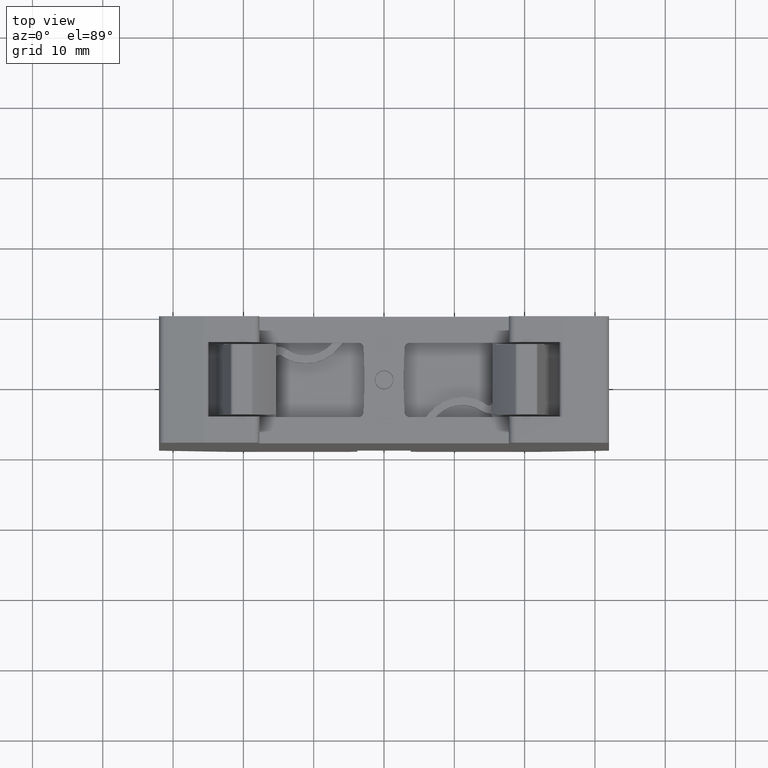
[diagram: clean part render]
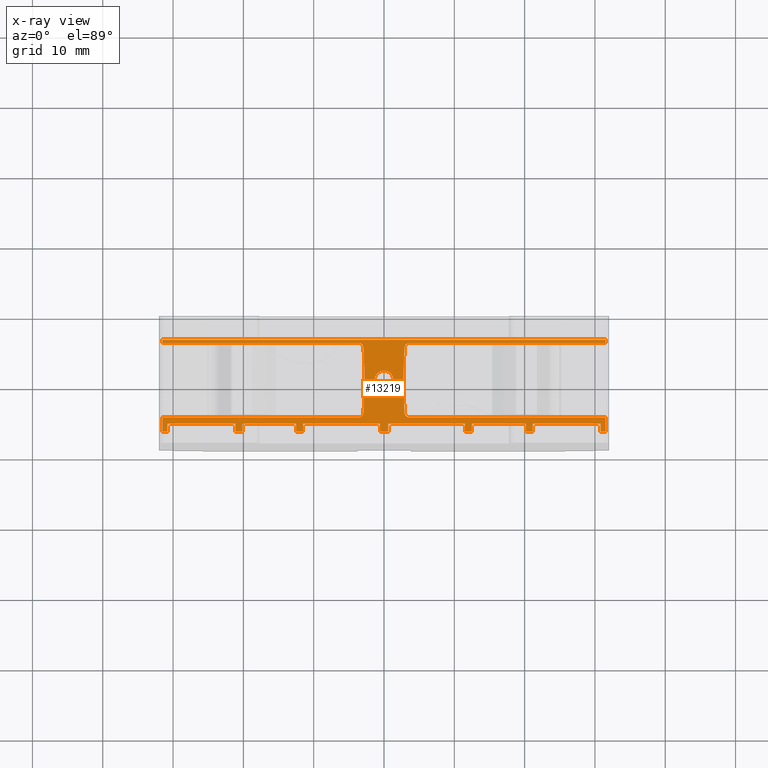
[diagram: x-ray — body ghosted, one internal face saturated and labeled with its STEP entity id]
A machine part, top view, then the same camera in x-ray: the body is ghosted and one INTERNAL B-rep face — a face not visible from any outside direction — is saturated and labeled: STEP entity #13219.
In plain terms, the highlighted planar face has unit normal (-0, 0, 1).
Its self-contained STEP definition (entity closure, byte-faithful):
#1357 = VECTOR ( 'NONE', #17690, 1000.000000000000000 ) ;
#1416 = VECTOR ( 'NONE', #17893, 1000.000000000000000 ) ;
#1419 = VECTOR ( 'NONE', #18121, 1000.000000000000000 ) ;
#1425 = VECTOR ( 'NONE', #18141, 1000.000000000000000 ) ;
#1433 = VECTOR ( 'NONE', #17871, 1000.000000000000000 ) ;
#1435 = VECTOR ( 'NONE', #17680, 1000.000000000000000 ) ;
#1471 = VECTOR ( 'NONE', #17788, 1000.000000000000000 ) ;
#1477 = VECTOR ( 'NONE', #16732, 1000.000000000000000 ) ;
#1494 = VECTOR ( 'NONE', #18208, 1000.000000000000000 ) ;
#1500 = VECTOR ( 'NONE', #18220, 1000.000000000000000 ) ;
#1502 = VECTOR ( 'NONE', #18165, 1000.000000000000000 ) ;
#1568 = VECTOR ( 'NONE', #18380, 1000.000000000000000 ) ;
#1573 = VECTOR ( 'NONE', #19024, 999.9999999999998900 ) ;
#1574 = VECTOR ( 'NONE', #18853, 1000.000000000000100 ) ;
#1576 = VECTOR ( 'NONE', #18931, 1000.000000000000000 ) ;
#1580 = VECTOR ( 'NONE', #17835, 1000.000000000000100 ) ;
#1583 = VECTOR ( 'NONE', #18794, 1000.000000000000000 ) ;
#1586 = VECTOR ( 'NONE', #18885, 1000.000000000000000 ) ;
#1590 = VECTOR ( 'NONE', #17857, 1000.000000000000000 ) ;
#1595 = VECTOR ( 'NONE', #18836, 1000.000000000000000 ) ;
#1596 = VECTOR ( 'NONE', #18819, 1000.000000000000000 ) ;
#1601 = VECTOR ( 'NONE', #18965, 1000.000000000000000 ) ;
#1607 = VECTOR ( 'NONE', #18994, 999.9999999999998900 ) ;
#1631 = VECTOR ( 'NONE', #19010, 1000.000000000000000 ) ;
#1709 = VECTOR ( 'NONE', #19875, 1000.000000000000000 ) ;
#1719 = VECTOR ( 'NONE', #3483, 1000.000000000000000 ) ;
#2250 = EDGE_CURVE ( 'NONE', #21984, #21950, #2954, .T. ) ;
#2255 = EDGE_CURVE ( 'NONE', #21880, #21900, #17646, .T. ) ;
#2260 = EDGE_CURVE ( 'NONE', #22620, #21815, #17675, .T. ) ;
#2277 = EDGE_CURVE ( 'NONE', #21968, #21799, #17781, .T. ) ;
#2294 = EDGE_CURVE ( 'NONE', #21802, #21766, #16704, .T. ) ;
#2302 = EDGE_CURVE ( 'NONE', #21861, #21678, #17907, .T. ) ;
#2305 = EDGE_CURVE ( 'NONE', #21869, #21953, #17905, .T. ) ;
#2353 = EDGE_CURVE ( 'NONE', #21950, #22066, #18116, .T. ) ;
#2358 = EDGE_CURVE ( 'NONE', #22017, #22108, #18170, .T. ) ;
#2366 = EDGE_CURVE ( 'NONE', #22015, #21968, #18149, .T. ) ;
#2379 = EDGE_CURVE ( 'NONE', #21802, #21637, #18202, .T. ) ;
#2381 = EDGE_CURVE ( 'NONE', #21869, #22984, #18210, .T. ) ;
#2415 = EDGE_CURVE ( 'NONE', #21687, #21815, #18346, .T. ) ;
#2504 = EDGE_CURVE ( 'NONE', #22185, #22196, #18793, .T. ) ;
#2507 = EDGE_CURVE ( 'NONE', #22213, #22171, #3069, .T. ) ;
#2508 = EDGE_CURVE ( 'NONE', #22134, #22185, #3070, .T. ) ;
#2509 = EDGE_CURVE ( 'NONE', #22134, #22098, #18838, .T. ) ;
#2510 = EDGE_CURVE ( 'NONE', #22195, #22066, #18868, .T. ) ;
#2519 = EDGE_CURVE ( 'NONE', #22017, #22148, #18916, .T. ) ;
#2521 = EDGE_CURVE ( 'NONE', #22146, #22175, #3046, .T. ) ;
#2522 = EDGE_CURVE ( 'NONE', #22202, #22087, #18923, .T. ) ;
#2525 = EDGE_CURVE ( 'NONE', #22015, #22108, #18956, .T. ) ;
#2526 = EDGE_CURVE ( 'NONE', #22148, #22168, #3047, .T. ) ;
#2536 = EDGE_CURVE ( 'NONE', #22098, #22171, #17844, .T. ) ;
#2538 = EDGE_CURVE ( 'NONE', #22192, #21984, #17841, .T. ) ;
#2545 = EDGE_CURVE ( 'NONE', #22192, #22213, #18796, .T. ) ;
#2550 = EDGE_CURVE ( 'NONE', #22215, #22150, #19022, .T. ) ;
#2558 = EDGE_CURVE ( 'NONE', #22150, #22168, #19007, .T. ) ;
#2559 = EDGE_CURVE ( 'NONE', #22202, #22196, #19025, .T. ) ;
#2560 = EDGE_CURVE ( 'NONE', #22215, #22195, #3073, .T. ) ;
#2561 = EDGE_CURVE ( 'NONE', #22175, #22146, #3083, .T. ) ;
#2717 = EDGE_CURVE ( 'NONE', #21953, #22087, #19877, .T. ) ;
#2809 = EDGE_CURVE ( 'NONE', #21571, #21799, #3471, .T. ) ;
#2954 = B_SPLINE_CURVE_WITH_KNOTS ( 'NONE', 3,
 ( #17656, #17655, #17661, #17651 ),
 .UNSPECIFIED., .F., .F.,
 ( 4, 4 ),
 ( 0.0000000000000000000, 1.000000000000000000 ),
 .UNSPECIFIED. ) ;
#3046 = B_SPLINE_CURVE_WITH_KNOTS ( 'NONE', 3,
 ( #18870, #18871, #18899, #18903, #18911, #18904, #18905, #18921, #18920, #18876, #18894, #18872, #18891, #18877, #18908, #18873, #18896, #18909, #18878, #18880, #18882, #18893, #18886, #18883, #18888, #18889, #18964, #18976, #18933, #18934, #18954, #18970, #18959, #18955 ),
 .UNSPECIFIED., .F., .F.,
 ( 4, 1, 1, 2, 2, 2, 1, 1, 2, 2, 2, 1, 1, 2, 2, 2, 1, 1, 2, 2, 4 ),
 ( 0.0000000000000000000, 0.06250000000001206000, 0.09375000000001809700, 0.1093750000000211100, 0.1250000000000241200, 0.2500000000000541800, 0.3125000000000708300, 0.3437500000000792100, 0.3593750000000844300, 0.3750000000000897100, 0.5000000000000884800, 0.5625000000000930400, 0.5937500000001008100, 0.6093750000001053600, 0.6250000000001099100, 0.7500000000000967000, 0.8125000000000901500, 0.8437500000000848200, 0.8593750000000801600, 0.8750000000000753800, 1.000000000000000000 ),
 .UNSPECIFIED. ) ;
#3047 = B_SPLINE_CURVE_WITH_KNOTS ( 'NONE', 3,
 ( #18951, #18937, #18952, #18936, #18947, #18957, #18967, #18966, #18938, #18953, #18968, #18928, #18939, #18944, #18960, #18969 ),
 .UNSPECIFIED., .F., .F.,
 ( 4, 1, 2, 2, 2, 1, 2, 2, 4 ),
 ( 0.0000000000000000000, 0.1250000000000129600, 0.1875000000000025800, 0.2499999999999922300, 0.4999999999999765700, 0.6249999999999746900, 0.6874999999999764600, 0.7499999999999782400, 1.000000000000000000 ),
 .UNSPECIFIED. ) ;
#3069 = B_SPLINE_CURVE_WITH_KNOTS ( 'NONE', 3,
 ( #18830, #18862, #18851, #18824, #18832, #18828, #18860, #18825, #18820, #18844, #18829, #18842, #18826, #18839, #18849, #18863 ),
 .UNSPECIFIED., .F., .F.,
 ( 4, 1, 2, 2, 2, 1, 2, 2, 4 ),
 ( 0.0000000000000000000, 0.1249999999999689400, 0.1874999999999702500, 0.2499999999999715800, 0.5000000000000212100, 0.6250000000000399700, 0.6875000000000394100, 0.7500000000000388600, 1.000000000000000000 ),
 .UNSPECIFIED. ) ;
#3070 = B_SPLINE_CURVE_WITH_KNOTS ( 'NONE', 3,
 ( #18831, #18841, #18821, #18845, #18856, #18833, #18866, #18840, #18846, #18867, #18848, #18857, #18852, #18847, #18835, #18837 ),
 .UNSPECIFIED., .F., .F.,
 ( 4, 1, 2, 2, 2, 1, 2, 2, 4 ),
 ( 0.0000000000000000000, 0.1250000000000042500, 0.1875000000000114900, 0.2500000000000187100, 0.5000000000000498500, 0.6250000000000594000, 0.6875000000000541800, 0.7500000000000490700, 1.000000000000000000 ),
 .UNSPECIFIED. ) ;
#3073 = B_SPLINE_CURVE_WITH_KNOTS ( 'NONE', 3,
 ( #19009, #18978, #18979, #18980, #18992, #19011, #19064, #19043, #19037, #19053, #19069, #19063, #19047, #19042, #19035, #19054 ),
 .UNSPECIFIED., .F., .F.,
 ( 4, 1, 2, 2, 2, 1, 2, 2, 4 ),
 ( 0.0000000000000000000, 0.1249999999999928400, 0.1875000000000025800, 0.2500000000000123200, 0.5000000000000198700, 0.6250000000000236500, 0.6875000000000208700, 0.7500000000000181000, 1.000000000000000000 ),
 .UNSPECIFIED. ) ;
#3083 = B_SPLINE_CURVE_WITH_KNOTS ( 'NONE', 3,
 ( #19019, #18977, #19065, #19048, #19044, #19036, #19055, #19038, #19074, #19056, #19027, #19075, #19071, #19032, #19033, #19057, #19045, #19076, #19070, #19072, #19031, #19041, #19049, #19073, #19077, #19083, #19029, #19078, #19039, #19050, #19058, #19046, #19084, #19034 ),
 .UNSPECIFIED., .F., .F.,
 ( 4, 1, 1, 2, 2, 2, 1, 1, 2, 2, 2, 1, 1, 2, 2, 2, 1, 1, 2, 2, 4 ),
 ( 0.0000000000000000000, 0.06250000000001622300, 0.09375000000002529900, 0.1093750000000298400, 0.1250000000000343600, 0.2500000000000663400, 0.3125000000000806600, 0.3437500000000904800, 0.3593750000000964800, 0.3750000000001025300, 0.5000000000000962600, 0.5625000000000931500, 0.5937500000000870400, 0.6093750000000897100, 0.6250000000000922600, 0.7500000000000818200, 0.8125000000000767200, 0.8437500000000695000, 0.8593750000000637300, 0.8750000000000580600, 1.000000000000000000 ),
 .UNSPECIFIED. ) ;
#3471 = LINE ( 'NONE', #3476, #1719 ) ;
#3476 = CARTESIAN_POINT ( 'NONE',  ( 78.84951453915148500, 27.34912838396847300, 67.45686976279056100 ) ) ;
#3483 = DIRECTION ( 'NONE',  ( -7.093989038407037500E-015, 1.000000000000000000, -6.046544723601002400E-027 ) ) ;
#4425 = FACE_BOUND ( 'NONE', #21347, .T. ) ;
#4505 = FACE_OUTER_BOUND ( 'NONE', #21423, .T. ) ;
#4644 = PLANE ( 'NONE',  #15846 ) ;
#4682 = CARTESIAN_POINT ( 'NONE',  ( -246.0004763166920200, 57.37460764094880300, 67.45686993021310200 ) ) ;
#4704 = DIRECTION ( 'NONE',  ( -9.253514454560193400E-013, 3.491481356601049100E-015, 1.000000000000000000 ) ) ;
#4707 = DIRECTION ( 'NONE',  ( 1.000000000000000000, 0.0000000000000000000, 9.253514454560193400E-013 ) ) ;
#5412 = CARTESIAN_POINT ( 'NONE',  ( 97.08968792074087200, 45.49843301844644100, 67.45686980424761700 ) ) ;
#5696 = CARTESIAN_POINT ( 'NONE',  ( 102.9093185216858800, 54.65078226347747400, 67.45686993004518700 ) ) ;
#6050 = CARTESIAN_POINT ( 'NONE',  ( 120.1495145391509300, 42.77460764097550300, 67.45686968071014200 ) ) ;
#6218 = CARTESIAN_POINT ( 'NONE',  ( 112.4995145415566500, 42.77460764097544700, 67.45686982571788800 ) ) ;
#6235 = CARTESIAN_POINT ( 'NONE',  ( 88.49951454396679700, 42.77460764097526200, 67.45686988859188200 ) ) ;
#6241 = CARTESIAN_POINT ( 'NONE',  ( 78.84951453915135700, 42.77460764097521200, 67.45686976279085900 ) ) ;
#6283 = CARTESIAN_POINT ( 'NONE',  ( 100.5995145423596700, 42.77460764097535400, 67.45686988860308000 ) ) ;
#6312 = CARTESIAN_POINT ( 'NONE',  ( 99.39951454565061800, 42.77460764097535400, 67.45686984667145200 ) ) ;
#6332 = CARTESIAN_POINT ( 'NONE',  ( 111.4995145391510800, 42.77460764097543900, 67.45686976282107100 ) ) ;
#6336 = CARTESIAN_POINT ( 'NONE',  ( 120.1495145455061900, 43.87460764096159200, 67.45686984669036700 ) ) ;
#6363 = CARTESIAN_POINT ( 'NONE',  ( 87.49951454565061200, 42.77460764097526200, 67.45686984666038200 ) ) ;
#6403 = CARTESIAN_POINT ( 'NONE',  ( 78.84951454094215300, 43.87460764096126600, 67.45686981869829400 ) ) ;
#6412 = CARTESIAN_POINT ( 'NONE',  ( 99.39951454240250000, 43.87460764096145000, 67.45686984667118200 ) ) ;
#6458 = CARTESIAN_POINT ( 'NONE',  ( 87.49951454565062600, 43.87460764096135100, 67.45686984666014000 ) ) ;
#6466 = CARTESIAN_POINT ( 'NONE',  ( 88.49951454075643700, 43.87460764096139300, 67.45686993052518700 ) ) ;
#6492 = CARTESIAN_POINT ( 'NONE',  ( 112.4995145407540500, 43.87460764096155700, 67.45686993054665900 ) ) ;
#6521 = CARTESIAN_POINT ( 'NONE',  ( 100.5995145407540600, 43.87460764096147200, 67.45686993053639900 ) ) ;
#6528 = CARTESIAN_POINT ( 'NONE',  ( 121.1495145391511100, 43.87460764096162800, 67.45686972710656400 ) ) ;
#6563 = CARTESIAN_POINT ( 'NONE',  ( 111.4995145391519900, 43.87460764096154300, 67.45686980475157700 ) ) ;
#6614 = CARTESIAN_POINT ( 'NONE',  ( 69.19951454273152100, 43.87460764096123700, 67.45686993050480900 ) ) ;
#6628 = CARTESIAN_POINT ( 'NONE',  ( 68.49952465779669800, 55.82460764096136800, 67.45686993050630100 ) ) ;
#6629 = CARTESIAN_POINT ( 'NONE',  ( 130.7995145391522800, 43.87460764096164900, 67.45686993056180800 ) ) ;
#6634 = CARTESIAN_POINT ( 'NONE',  ( 131.4995174183737600, 55.82460764096168800, 67.45686993056092700 ) ) ;
#6646 = CARTESIAN_POINT ( 'NONE',  ( 69.19951454094335500, 42.77460764097514800, 67.45686981868935600 ) ) ;
#6682 = CARTESIAN_POINT ( 'NONE',  ( 68.49951453914739800, 44.77460764097488500, 67.45686980471178600 ) ) ;
#6710 = CARTESIAN_POINT ( 'NONE',  ( 68.49951453914751200, 42.77460764097514100, 67.45686980471177200 ) ) ;
#6741 = CARTESIAN_POINT ( 'NONE',  ( 130.7995145391522800, 42.77460764097558900, 67.45686981874678200 ) ) ;
#6750 = CARTESIAN_POINT ( 'NONE',  ( 102.7495032212108900, 50.07460764089338300, 67.45686984667436500 ) ) ;
#6759 = CARTESIAN_POINT ( 'NONE',  ( 68.49952621712147000, 55.37460764094613800, 67.45686993050416900 ) ) ;
#6768 = CARTESIAN_POINT ( 'NONE',  ( 96.34014480047655100, 44.77460764097410400, 67.45686980473112700 ) ) ;
#6769 = CARTESIAN_POINT ( 'NONE',  ( 97.24950322121321700, 50.07460764110015100, 67.45686984666913600 ) ) ;
#6783 = CARTESIAN_POINT ( 'NONE',  ( 102.9092949990357200, 45.49843301841212200, 67.45686980474369000 ) ) ;
#6791 = CARTESIAN_POINT ( 'NONE',  ( 101.3495032205522400, 50.07460764096234100, 67.45686981753581800 ) ) ;
#6807 = CARTESIAN_POINT ( 'NONE',  ( 103.6588616419503000, 55.37460764094824100, 67.45686993054313500 ) ) ;
#6812 = CARTESIAN_POINT ( 'NONE',  ( 96.34016832116310500, 55.37460764094702600, 67.45686993003920400 ) ) ;
#6814 = CARTESIAN_POINT ( 'NONE',  ( 103.6588381212622400, 44.77460764097463700, 67.45686980425367100 ) ) ;
#6826 = CARTESIAN_POINT ( 'NONE',  ( 131.4995145391549700, 55.37460764094533500, 67.45686993056251900 ) ) ;
#6835 = CARTESIAN_POINT ( 'NONE',  ( 97.08971144339101000, 54.65078226351186400, 67.45686993053063000 ) ) ;
#6847 = CARTESIAN_POINT ( 'NONE',  ( 131.4995032037286100, 44.77460764097518400, 67.45686976283929000 ) ) ;
#6861 = CARTESIAN_POINT ( 'NONE',  ( 131.4995032037287200, 42.77460764097558200, 67.45686976283927500 ) ) ;
#7208 = CARTESIAN_POINT ( 'NONE',  ( 79.84951453915138600, 43.87460764096132900, 67.45686993051468500 ) ) ;
#7246 = CARTESIAN_POINT ( 'NONE',  ( 79.84951453915394400, 42.77460764097521900, 67.45686981869920400 ) ) ;
#7258 = CARTESIAN_POINT ( 'NONE',  ( 121.1495145391511100, 42.77460764097553900, 67.45686962538340500 ) ) ;
#8536 = LINE ( 'NONE', #8552, #16038 ) ;
#8537 = DIRECTION ( 'NONE',  ( 7.093989038407038300E-015, -1.000000000000000000, 6.092600229997785300E-027 ) ) ;
#8552 = CARTESIAN_POINT ( 'NONE',  ( 79.84951453915148500, 27.34912838396845600, 67.45686993051468500 ) ) ;
#9545 = CARTESIAN_POINT ( 'NONE',  ( 585.9995057375033400, 42.77460764097880700, 67.45686976279147000 ) ) ;
#9548 = DIRECTION ( 'NONE',  ( -1.000000000000000000, -7.093989029260209500E-015, -0.0000000000000000000 ) ) ;
#9585 = LINE ( 'NONE', #9545, #10066 ) ;
#9882 = LINE ( 'NONE', #9884, #10111 ) ;
#9884 = CARTESIAN_POINT ( 'NONE',  ( 585.9995057375033400, 42.77460764097880700, 67.45686962538340500 ) ) ;
#9895 = DIRECTION ( 'NONE',  ( -1.000000000000000000, -7.093989029260209500E-015, -0.0000000000000000000 ) ) ;
#9909 = CARTESIAN_POINT ( 'NONE',  ( 585.9995057375033400, 42.77460764097880700, 67.45686976279949900 ) ) ;
#9911 = DIRECTION ( 'NONE',  ( -1.000000000000000000, -7.093989029260209500E-015, -0.0000000000000000000 ) ) ;
#9934 = CARTESIAN_POINT ( 'NONE',  ( 585.9995057375033400, 42.77460764097880700, 67.45686976281068300 ) ) ;
#9939 = DIRECTION ( 'NONE',  ( -1.000000000000000000, -7.093989029260209500E-015, -0.0000000000000000000 ) ) ;
#9941 = LINE ( 'NONE', #9909, #10132 ) ;
#9953 = LINE ( 'NONE', #9934, #10078 ) ;
#9967 = DIRECTION ( 'NONE',  ( -1.000000000000000000, -7.093989029260209500E-015, -0.0000000000000000000 ) ) ;
#9996 = CARTESIAN_POINT ( 'NONE',  ( 585.9995057375033400, 42.77460764097880700, 67.45686976282168200 ) ) ;
#10004 = LINE ( 'NONE', #9996, #10072 ) ;
#10066 = VECTOR ( 'NONE', #9548, 1000.000000000000000 ) ;
#10072 = VECTOR ( 'NONE', #9967, 1000.000000000000000 ) ;
#10078 = VECTOR ( 'NONE', #9911, 1000.000000000000000 ) ;
#10111 = VECTOR ( 'NONE', #9895, 1000.000000000000000 ) ;
#10132 = VECTOR ( 'NONE', #9939, 1000.000000000000000 ) ;
#10152 = VECTOR ( 'NONE', #10790, 1000.000000000000000 ) ;
#10169 = VECTOR ( 'NONE', #10784, 1000.000000000000000 ) ;
#10174 = VECTOR ( 'NONE', #10774, 1000.000000000000000 ) ;
#10188 = VECTOR ( 'NONE', #10689, 1000.000000000000000 ) ;
#10288 = VECTOR ( 'NONE', #11861, 1000.000000000000000 ) ;
#10687 = CARTESIAN_POINT ( 'NONE',  ( 100.5995145391490000, 27.34912838396862600, 67.45686993053387000 ) ) ;
#10689 = DIRECTION ( 'NONE',  ( 7.093989038407039900E-015, -1.000000000000000000, 6.641727822200332300E-027 ) ) ;
#10709 = LINE ( 'NONE', #10687, #10188 ) ;
#10768 = LINE ( 'NONE', #10787, #10169 ) ;
#10770 = CARTESIAN_POINT ( 'NONE',  ( 112.4995145391490300, 27.34912838396870400, 67.45686993054489700 ) ) ;
#10774 = DIRECTION ( 'NONE',  ( 7.093989038407036700E-015, -1.000000000000000000, 6.663376528223703100E-027 ) ) ;
#10784 = DIRECTION ( 'NONE',  ( -7.093989038407039900E-015, 1.000000000000000000, -6.363739516120884200E-027 ) ) ;
#10787 = CARTESIAN_POINT ( 'NONE',  ( 99.39951453915361400, 27.34912838396860800, 67.45686976280958900 ) ) ;
#10790 = DIRECTION ( 'NONE',  ( -7.093989038407040700E-015, 1.000000000000000000, -6.663150629078149000E-027 ) ) ;
#10798 = LINE ( 'NONE', #10770, #10174 ) ;
#10800 = CARTESIAN_POINT ( 'NONE',  ( 111.4995145391511900, 27.34912838396869000, 67.45686976282077300 ) ) ;
#10801 = LINE ( 'NONE', #10800, #10152 ) ;
#11787 = LINE ( 'NONE', #11828, #10288 ) ;
#11828 = CARTESIAN_POINT ( 'NONE',  ( 120.1495145391510100, 27.34912838396874700, 67.45686976282877400 ) ) ;
#11861 = DIRECTION ( 'NONE',  ( -7.093989038407037500E-015, 1.000000000000000000, -6.936842436110397400E-027 ) ) ;
#12602 = CARTESIAN_POINT ( 'NONE',  ( 98.64950322122520300, 50.07460764096199300, 67.45686981636113400 ) ) ;
#13219 = ADVANCED_FACE ( 'NONE', ( #4505, #4425 ), #4644, .F. ) ;
#13379 = EDGE_CURVE ( 'NONE', #22620, #22616, #8536, .T. ) ;
#13645 = EDGE_CURVE ( 'NONE', #22616, #21571, #9585, .T. ) ;
#13708 = EDGE_CURVE ( 'NONE', #22984, #20841, #9882, .T. ) ;
#13718 = EDGE_CURVE ( 'NONE', #21640, #21636, #9953, .T. ) ;
#13727 = EDGE_CURVE ( 'NONE', #21637, #21687, #9941, .T. ) ;
#13732 = EDGE_CURVE ( 'NONE', #21654, #21689, #10004, .T. ) ;
#13779 = EDGE_CURVE ( 'NONE', #21880, #21640, #10709, .T. ) ;
#13805 = EDGE_CURVE ( 'NONE', #21636, #21766, #10768, .T. ) ;
#13807 = EDGE_CURVE ( 'NONE', #21861, #21654, #10798, .T. ) ;
#13809 = EDGE_CURVE ( 'NONE', #21689, #21900, #10801, .T. ) ;
#14003 = EDGE_CURVE ( 'NONE', #20841, #21678, #11787, .T. ) ;
#15846 = AXIS2_PLACEMENT_3D ( 'NONE', #4682, #4704, #4707 ) ;
#16038 = VECTOR ( 'NONE', #8537, 1000.000000000000000 ) ;
#16700 = CARTESIAN_POINT ( 'NONE',  ( -246.0004763166920200, 43.87460764096139300, 67.45686993021314500 ) ) ;
#16704 = LINE ( 'NONE', #16700, #1477 ) ;
#16732 = DIRECTION ( 'NONE',  ( 1.000000000000000000, 0.0000000000000000000, 9.253514454560193400E-013 ) ) ;
#17644 = CARTESIAN_POINT ( 'NONE',  ( -246.0004763166920200, 43.87460764096147200, 67.45686993021314500 ) ) ;
#17646 = LINE ( 'NONE', #17644, #1357 ) ;
#17651 = CARTESIAN_POINT ( 'NONE',  ( 68.49952465779669800, 55.82460764096136800, 67.45686993050630100 ) ) ;
#17655 = CARTESIAN_POINT ( 'NONE',  ( 110.4995222707688100, 55.82460764096153100, 67.45686993050411200 ) ) ;
#17656 = CARTESIAN_POINT ( 'NONE',  ( 131.4995174183737600, 55.82460764096168800, 67.45686993056092700 ) ) ;
#17661 = CARTESIAN_POINT ( 'NONE',  ( 89.49952424394511800, 55.82460764096137500, 67.45686993050411200 ) ) ;
#17675 = LINE ( 'NONE', #17679, #1435 ) ;
#17679 = CARTESIAN_POINT ( 'NONE',  ( -246.0004763166920200, 43.87460764096130800, 67.45686993021314500 ) ) ;
#17680 = DIRECTION ( 'NONE',  ( 1.000000000000000000, 0.0000000000000000000, 9.253514454560193400E-013 ) ) ;
#17690 = DIRECTION ( 'NONE',  ( 1.000000000000000000, 0.0000000000000000000, 9.253514454560193400E-013 ) ) ;
#17769 = CARTESIAN_POINT ( 'NONE',  ( -246.0004763166920200, 43.87460764096122300, 67.45686993021314500 ) ) ;
#17781 = LINE ( 'NONE', #17769, #1471 ) ;
#17788 = DIRECTION ( 'NONE',  ( 1.000000000000000000, 0.0000000000000000000, 9.253514454560193400E-013 ) ) ;
#17826 = CARTESIAN_POINT ( 'NONE',  ( 102.7495149825677300, 50.07460764178639300, 67.45686993053581700 ) ) ;
#17835 = DIRECTION ( 'NONE',  ( 0.03489949670251698400, 0.9993908270190951000, 0.0000000000000000000 ) ) ;
#17841 = LINE ( 'NONE', #17867, #1590 ) ;
#17844 = LINE ( 'NONE', #17826, #1580 ) ;
#17857 = DIRECTION ( 'NONE',  ( -6.982966722215524300E-015, 1.000000000000000000, -3.491481338604721400E-015 ) ) ;
#17867 = CARTESIAN_POINT ( 'NONE',  ( 131.4995145391549700, 57.37460764095146700, 67.45686993056250500 ) ) ;
#17871 = DIRECTION ( 'NONE',  ( 1.000000000000000000, 0.0000000000000000000, 9.253514454560193400E-013 ) ) ;
#17889 = CARTESIAN_POINT ( 'NONE',  ( -246.0004763166920200, 43.87460764096162800, 67.45686993021314500 ) ) ;
#17893 = DIRECTION ( 'NONE',  ( 1.000000000000000000, 0.0000000000000000000, 9.253514454560193400E-013 ) ) ;
#17905 = LINE ( 'NONE', #17889, #1416 ) ;
#17907 = LINE ( 'NONE', #17916, #1433 ) ;
#17916 = CARTESIAN_POINT ( 'NONE',  ( -246.0004763166920200, 43.87460764096155700, 67.45686993021314500 ) ) ;
#18090 = CARTESIAN_POINT ( 'NONE',  ( 68.49952621712147000, 57.37460764094880300, 67.45686993050412600 ) ) ;
#18116 = LINE ( 'NONE', #18090, #1419 ) ;
#18121 = DIRECTION ( 'NONE',  ( -3.230847320113523900E-027, -1.000000000000000000, 3.491481356601049100E-015 ) ) ;
#18141 = DIRECTION ( 'NONE',  ( -3.230847320113523900E-027, -1.000000000000000000, 3.491481356601049100E-015 ) ) ;
#18142 = CARTESIAN_POINT ( 'NONE',  ( 68.49951453914742700, 57.37460764094880300, 67.45686993050412600 ) ) ;
#18149 = LINE ( 'NONE', #18175, #1502 ) ;
#18165 = DIRECTION ( 'NONE',  ( 3.230847320113523900E-027, 1.000000000000000000, -3.491481356601049100E-015 ) ) ;
#18170 = LINE ( 'NONE', #18142, #1425 ) ;
#18175 = CARTESIAN_POINT ( 'NONE',  ( 69.19951454452233000, 57.37460764094880300, 67.45686993050478000 ) ) ;
#18202 = LINE ( 'NONE', #18211, #1494 ) ;
#18208 = DIRECTION ( 'NONE',  ( 7.093989038407038300E-015, -1.000000000000000000, 6.682785569954481100E-027 ) ) ;
#18210 = LINE ( 'NONE', #18233, #1500 ) ;
#18211 = CARTESIAN_POINT ( 'NONE',  ( 88.49951453915139200, 27.34912838396850900, 67.45686993052267200 ) ) ;
#18220 = DIRECTION ( 'NONE',  ( 7.093989038407040700E-015, -1.000000000000000000, 6.599328664446521800E-027 ) ) ;
#18233 = CARTESIAN_POINT ( 'NONE',  ( 121.1495145391512100, 27.34912838396876500, 67.45686962538340500 ) ) ;
#18346 = LINE ( 'NONE', #18386, #1568 ) ;
#18380 = DIRECTION ( 'NONE',  ( -7.093989038407039100E-015, 1.000000000000000000, -6.365299292225615500E-027 ) ) ;
#18386 = CARTESIAN_POINT ( 'NONE',  ( 87.49951453915362300, 27.34912838396850900, 67.45686976279854700 ) ) ;
#18767 = CARTESIAN_POINT ( 'NONE',  ( 585.9995057375033400, 44.77460764097880700, 67.45686976281361100 ) ) ;
#18793 = LINE ( 'NONE', #18767, #1583 ) ;
#18794 = DIRECTION ( 'NONE',  ( 1.000000000000000000, 7.093989029260209500E-015, 0.0000000000000000000 ) ) ;
#18796 = LINE ( 'NONE', #18855, #1596 ) ;
#18819 = DIRECTION ( 'NONE',  ( -1.000000000000000000, 9.748774548721833100E-015, 0.0000000000000000000 ) ) ;
#18820 = CARTESIAN_POINT ( 'NONE',  ( 103.1014395012631700, 55.12888687328670300, 67.45686993053615800 ) ) ;
#18821 = CARTESIAN_POINT ( 'NONE',  ( 102.9197695568598000, 45.38273571798745100, 67.45686993053601600 ) ) ;
#18824 = CARTESIAN_POINT ( 'NONE',  ( 103.4758764792528900, 55.35240074552417900, 67.45686993053651300 ) ) ;
#18825 = CARTESIAN_POINT ( 'NONE',  ( 103.2107245897919800, 55.23456372703658700, 67.45686993053625700 ) ) ;
#18826 = CARTESIAN_POINT ( 'NONE',  ( 102.9784446440641100, 54.94099348068227300, 67.45686993053607200 ) ) ;
#18828 = CARTESIAN_POINT ( 'NONE',  ( 103.4117733967786100, 55.33320897108853800, 67.45686993053645600 ) ) ;
#18829 = CARTESIAN_POINT ( 'NONE',  ( 103.0140286055012200, 55.00868711901485900, 67.45686993053611500 ) ) ;
#18830 = CARTESIAN_POINT ( 'NONE',  ( 103.6588616419503000, 55.37460764094824100, 67.45686993054313500 ) ) ;
#18831 = CARTESIAN_POINT ( 'NONE',  ( 102.9092949990357200, 45.49843301841212200, 67.45686980474369000 ) ) ;
#18832 = CARTESIAN_POINT ( 'NONE',  ( 103.4316712262765800, 55.33979215938561700, 67.45686993053649900 ) ) ;
#18833 = CARTESIAN_POINT ( 'NONE',  ( 102.9592917053402800, 45.25294008550052600, 67.45686993053605800 ) ) ;
#18835 = CARTESIAN_POINT ( 'NONE',  ( 103.5653088062883300, 44.77473326324060600, 67.45686993053661200 ) ) ;
#18836 = DIRECTION ( 'NONE',  ( -1.000000000000000000, 9.748774548721833100E-015, 0.0000000000000000000 ) ) ;
#18837 = CARTESIAN_POINT ( 'NONE',  ( 103.6588381212622400, 44.77460764097463700, 67.45686980425367100 ) ) ;
#18838 = LINE ( 'NONE', #18859, #1574 ) ;
#18839 = CARTESIAN_POINT ( 'NONE',  ( 102.9327006334639000, 54.83384398982357100, 67.45686993053603000 ) ) ;
#18840 = CARTESIAN_POINT ( 'NONE',  ( 103.0648933595397900, 45.05545642139244900, 67.45686993053615800 ) ) ;
#18841 = CARTESIAN_POINT ( 'NONE',  ( 102.9109963663447900, 45.45151894097223500, 67.45686993053600100 ) ) ;
#18842 = CARTESIAN_POINT ( 'NONE',  ( 102.9900997813821300, 54.96516270079995800, 67.45686993053608700 ) ) ;
#18843 = CARTESIAN_POINT ( 'NONE',  ( -246.0004763166920200, 55.37460764094881000, 67.45686993052993300 ) ) ;
#18844 = CARTESIAN_POINT ( 'NONE',  ( 103.0530467263607100, 55.07189904626260800, 67.45686993053615800 ) ) ;
#18845 = CARTESIAN_POINT ( 'NONE',  ( 102.9378744566991100, 45.31633433484238800, 67.45686993053605800 ) ) ;
#18846 = CARTESIAN_POINT ( 'NONE',  ( 103.1743198324120400, 44.94992597538321600, 67.45686993053625700 ) ) ;
#18847 = CARTESIAN_POINT ( 'NONE',  ( 103.4750718852861300, 44.79158674688638800, 67.45686993053657000 ) ) ;
#18848 = CARTESIAN_POINT ( 'NONE',  ( 103.2974969605125800, 44.86676323890364400, 67.45686993053638500 ) ) ;
#18849 = CARTESIAN_POINT ( 'NONE',  ( 102.9127081933779000, 54.74425021681256700, 67.45686993053600100 ) ) ;
#18851 = CARTESIAN_POINT ( 'NONE',  ( 103.5428692643610000, 55.36817724149510400, 67.45686993053657000 ) ) ;
#18852 = CARTESIAN_POINT ( 'NONE',  ( 103.3663912240437700, 44.83356342816816900, 67.45686993053642800 ) ) ;
#18853 = DIRECTION ( 'NONE',  ( -0.03489949670247958400, 0.9993908270190964300, 0.0000000000000000000 ) ) ;
#18855 = CARTESIAN_POINT ( 'NONE',  ( -246.0004763166920200, 55.37460764094881000, 67.45686993056250500 ) ) ;
#18856 = CARTESIAN_POINT ( 'NONE',  ( 102.9520181031084300, 45.27259604382112500, 67.45686993053604400 ) ) ;
#18857 = CARTESIAN_POINT ( 'NONE',  ( 103.3418299687432700, 44.84436797186990000, 67.45686993053638500 ) ) ;
#18859 = CARTESIAN_POINT ( 'NONE',  ( 102.9092949990056700, 45.49843301927146700, 67.45686976281292900 ) ) ;
#18860 = CARTESIAN_POINT ( 'NONE',  ( 103.2936608076046400, 55.28740006569638900, 67.45686993053632800 ) ) ;
#18862 = CARTESIAN_POINT ( 'NONE',  ( 103.6119167663997700, 55.37454458775530200, 67.45686993053664100 ) ) ;
#18863 = CARTESIAN_POINT ( 'NONE',  ( 102.9093185216858800, 54.65078226347747400, 67.45686993004518700 ) ) ;
#18866 = CARTESIAN_POINT ( 'NONE',  ( 103.0091947751015600, 45.13649815506343500, 67.45686993053611500 ) ) ;
#18867 = CARTESIAN_POINT ( 'NONE',  ( 103.2329618274848100, 44.90355152652990300, 67.45686993053630000 ) ) ;
#18868 = LINE ( 'NONE', #18843, #1595 ) ;
#18870 = CARTESIAN_POINT ( 'NONE',  ( 101.3495032205522400, 50.07460764096234100, 67.45686981753581800 ) ) ;
#18871 = CARTESIAN_POINT ( 'NONE',  ( 101.3494473256832600, 50.16070205204346200, 67.45686993053456600 ) ) ;
#18872 = CARTESIAN_POINT ( 'NONE',  ( 100.6433507546461200, 51.26300382255884400, 67.45686993053388400 ) ) ;
#18873 = CARTESIAN_POINT ( 'NONE',  ( 100.3364780673722400, 51.39307968842658200, 67.45686993053361400 ) ) ;
#18876 = CARTESIAN_POINT ( 'NONE',  ( 100.8880576383265200, 51.09520062219423400, 67.45686993053412600 ) ) ;
#18877 = CARTESIAN_POINT ( 'NONE',  ( 100.5393752379868600, 51.31222118484326700, 67.45686993053379900 ) ) ;
#18878 = CARTESIAN_POINT ( 'NONE',  ( 99.78688328958034500, 51.41270027898719500, 67.45686993053311700 ) ) ;
#18880 = CARTESIAN_POINT ( 'NONE',  ( 99.64334060239779900, 51.37815774286072200, 67.45686993053297400 ) ) ;
#18881 = CARTESIAN_POINT ( 'NONE',  ( 585.9995057375033400, 44.77460764097880700, 67.45686976278099700 ) ) ;
#18882 = CARTESIAN_POINT ( 'NONE',  ( 99.58271883948852100, 51.35892021901882000, 67.45686993053293200 ) ) ;
#18883 = CARTESIAN_POINT ( 'NONE',  ( 99.32897731806794200, 51.26101448353900700, 67.45686993053267600 ) ) ;
#18885 = DIRECTION ( 'NONE',  ( 1.000000000000000000, 7.093989029260209500E-015, 0.0000000000000000000 ) ) ;
#18886 = CARTESIAN_POINT ( 'NONE',  ( 99.52428835045000700, 51.33842276787674300, 67.45686993053286100 ) ) ;
#18888 = CARTESIAN_POINT ( 'NONE',  ( 99.17691848118941800, 51.16130479126152200, 67.45686993053254800 ) ) ;
#18889 = CARTESIAN_POINT ( 'NONE',  ( 98.97892200131158800, 50.96315029771269400, 67.45686993053236300 ) ) ;
#18891 = CARTESIAN_POINT ( 'NONE',  ( 100.5813489278370400, 51.29313032060417800, 67.45686993053382700 ) ) ;
#18893 = CARTESIAN_POINT ( 'NONE',  ( 99.54250356012622100, 51.34510996317138900, 67.45686993053287500 ) ) ;
#18894 = CARTESIAN_POINT ( 'NONE',  ( 100.7813107281026400, 51.18227724864595300, 67.45686993053399800 ) ) ;
#18896 = CARTESIAN_POINT ( 'NONE',  ( 100.1715329376452200, 51.42467522699264000, 67.45686993053345800 ) ) ;
#18899 = CARTESIAN_POINT ( 'NONE',  ( 101.3375483619736300, 50.28738884259224300, 67.45686993053453800 ) ) ;
#18903 = CARTESIAN_POINT ( 'NONE',  ( 101.3030206400851500, 50.43089415260693200, 67.45686993053452300 ) ) ;
#18904 = CARTESIAN_POINT ( 'NONE',  ( 101.2700014301996300, 50.53165911034037800, 67.45686993053446700 ) ) ;
#18905 = CARTESIAN_POINT ( 'NONE',  ( 101.2633301069076700, 50.54983427305138800, 67.45686993053446700 ) ) ;
#18908 = CARTESIAN_POINT ( 'NONE',  ( 100.5164384367700600, 51.32191461726674200, 67.45686993053379900 ) ) ;
#18909 = CARTESIAN_POINT ( 'NONE',  ( 99.91350600498414300, 51.42457384794492000, 67.45686993053320200 ) ) ;
#18911 = CARTESIAN_POINT ( 'NONE',  ( 101.2837989883699000, 50.49147586855059400, 67.45686993053448100 ) ) ;
#18916 = LINE ( 'NONE', #18881, #1586 ) ;
#18920 = CARTESIAN_POINT ( 'NONE',  ( 101.0862121313128500, 50.89720414230309600, 67.45686993053432400 ) ) ;
#18921 = CARTESIAN_POINT ( 'NONE',  ( 101.1859218231424500, 50.74514530542988700, 67.45686993053438100 ) ) ;
#18923 = LINE ( 'NONE', #18949, #1576 ) ;
#18927 = CARTESIAN_POINT ( 'NONE',  ( 585.9995057375033400, 42.77460764097880700, 67.45686976278162200 ) ) ;
#18928 = CARTESIAN_POINT ( 'NONE',  ( 97.00890666104643900, 45.18405258112708400, 67.45686993053058700 ) ) ;
#18931 = DIRECTION ( 'NONE',  ( -1.000000000000000000, -7.093989029260209500E-015, -0.0000000000000000000 ) ) ;
#18933 = CARTESIAN_POINT ( 'NONE',  ( 98.78099230290131100, 50.65644158664654400, 67.45686993053217900 ) ) ;
#18934 = CARTESIAN_POINT ( 'NONE',  ( 98.76190143866065800, 50.61446789673906500, 67.45686993053216400 ) ) ;
#18936 = CARTESIAN_POINT ( 'NONE',  ( 96.52312996317660100, 44.79681453639737000, 67.45686993053011800 ) ) ;
#18937 = CARTESIAN_POINT ( 'NONE',  ( 96.38708967602913400, 44.77467069416565000, 67.45686993053000400 ) ) ;
#18938 = CARTESIAN_POINT ( 'NONE',  ( 96.89756694116549300, 45.02032840864038800, 67.45686993053045900 ) ) ;
#18939 = CARTESIAN_POINT ( 'NONE',  ( 97.02056179836282000, 45.20822180124125800, 67.45686993053057300 ) ) ;
#18944 = CARTESIAN_POINT ( 'NONE',  ( 97.06630580896303700, 45.31537129210078500, 67.45686993053060100 ) ) ;
#18947 = CARTESIAN_POINT ( 'NONE',  ( 96.56733521615190300, 44.80942312253612400, 67.45686993053013200 ) ) ;
#18949 = CARTESIAN_POINT ( 'NONE',  ( 585.9995057375033400, 42.77460764097880700, 67.45686976283927500 ) ) ;
#18951 = CARTESIAN_POINT ( 'NONE',  ( 96.34014480047655100, 44.77460764097410400, 67.45686980473112700 ) ) ;
#18952 = CARTESIAN_POINT ( 'NONE',  ( 96.45613717806929800, 44.78103804042614700, 67.45686993053004700 ) ) ;
#18953 = CARTESIAN_POINT ( 'NONE',  ( 96.94595971606926800, 45.07731623566763100, 67.45686993053050200 ) ) ;
#18954 = CARTESIAN_POINT ( 'NONE',  ( 98.75218271397852700, 50.59146713709373000, 67.45686993053213600 ) ) ;
#18955 = CARTESIAN_POINT ( 'NONE',  ( 98.64950322122520300, 50.07460764096199300, 67.45686981636113400 ) ) ;
#18956 = LINE ( 'NONE', #18927, #1601 ) ;
#18957 = CARTESIAN_POINT ( 'NONE',  ( 96.58723304564570400, 44.81600631083187400, 67.45686993053014600 ) ) ;
#18959 = CARTESIAN_POINT ( 'NONE',  ( 98.64965000860722500, 50.24643977376975100, 67.45686993053205100 ) ) ;
#18960 = CARTESIAN_POINT ( 'NONE',  ( 97.08629824904910800, 45.40496506511187400, 67.45686993053065800 ) ) ;
#18964 = CARTESIAN_POINT ( 'NONE',  ( 98.89184537486312400, 50.85640338723880700, 67.45686993053226400 ) ) ;
#18965 = DIRECTION ( 'NONE',  ( -1.000000000000000000, -7.093989029260209500E-015, -0.0000000000000000000 ) ) ;
#18966 = CARTESIAN_POINT ( 'NONE',  ( 96.78828185263134300, 44.91465155487819800, 67.45686993053034500 ) ) ;
#18967 = CARTESIAN_POINT ( 'NONE',  ( 96.70534563483262500, 44.86181521623157000, 67.45686993053027400 ) ) ;
#18968 = CARTESIAN_POINT ( 'NONE',  ( 96.98497783692822300, 45.14052816291407300, 67.45686993053053000 ) ) ;
#18969 = CARTESIAN_POINT ( 'NONE',  ( 97.08968792074087200, 45.49843301844644100, 67.45686980424761700 ) ) ;
#18970 = CARTESIAN_POINT ( 'NONE',  ( 98.68124527312875200, 50.41208239307251700, 67.45686993053209300 ) ) ;
#18976 = CARTESIAN_POINT ( 'NONE',  ( 98.81111880094862000, 50.71844341354532300, 67.45686993053219300 ) ) ;
#18977 = CARTESIAN_POINT ( 'NONE',  ( 98.64955911306422800, 49.98851322987299300, 67.45686993053206500 ) ) ;
#18978 = CARTESIAN_POINT ( 'NONE',  ( 97.08801007608185800, 54.69769634095173000, 67.45686993053061500 ) ) ;
#18979 = CARTESIAN_POINT ( 'NONE',  ( 97.07923688556687100, 54.76647956393646400, 67.45686993053060100 ) ) ;
#18980 = CARTESIAN_POINT ( 'NONE',  ( 97.06113198572759900, 54.83288094708150600, 67.45686993053055900 ) ) ;
#18989 = CARTESIAN_POINT ( 'NONE',  ( 97.24949145985887400, 50.07460764013813300, 67.45686976280764200 ) ) ;
#18992 = CARTESIAN_POINT ( 'NONE',  ( 97.04698833931833200, 54.87661923810271200, 67.45686993053057300 ) ) ;
#18994 = DIRECTION ( 'NONE',  ( 0.03489949670245558200, -0.9993908270190974300, 0.0000000000000000000 ) ) ;
#18999 = CARTESIAN_POINT ( 'NONE',  ( 131.4995032037287200, 42.77460764098192700, 67.45686976283927500 ) ) ;
#19007 = LINE ( 'NONE', #18989, #1573 ) ;
#19009 = CARTESIAN_POINT ( 'NONE',  ( 97.08971144339101000, 54.65078226351186400, 67.45686993053063000 ) ) ;
#19010 = DIRECTION ( 'NONE',  ( 6.871936330688009000E-015, 1.000000000000000000, 3.491481338839234000E-015 ) ) ;
#19011 = CARTESIAN_POINT ( 'NONE',  ( 97.03971473708652700, 54.89627519642315400, 67.45686993053055900 ) ) ;
#19019 = CARTESIAN_POINT ( 'NONE',  ( 98.64950322122520300, 50.07460764096199300, 67.45686981636113400 ) ) ;
#19022 = LINE ( 'NONE', #19023, #1607 ) ;
#19023 = CARTESIAN_POINT ( 'NONE',  ( 97.08971144342095300, 54.65078226265195100, 67.45686993053063000 ) ) ;
#19024 = DIRECTION ( 'NONE',  ( -0.03489949670248717500, -0.9993908270190963200, 0.0000000000000000000 ) ) ;
#19025 = LINE ( 'NONE', #18999, #1631 ) ;
#19027 = CARTESIAN_POINT ( 'NONE',  ( 99.21769571360408700, 48.96693803328358300, 67.45686993053259100 ) ) ;
#19029 = CARTESIAN_POINT ( 'NONE',  ( 101.1071610675496500, 49.29281189466908600, 67.45686993053433900 ) ) ;
#19031 = CARTESIAN_POINT ( 'NONE',  ( 100.4162876029363600, 48.79029506290485300, 67.45686993053372800 ) ) ;
#19032 = CARTESIAN_POINT ( 'NONE',  ( 99.45963120410772300, 48.83699409708246700, 67.45686993053279000 ) ) ;
#19033 = CARTESIAN_POINT ( 'NONE',  ( 99.48256800535620000, 48.82730066465772000, 67.45686993053281800 ) ) ;
#19034 = CARTESIAN_POINT ( 'NONE',  ( 101.3495032205522400, 50.07460764096234100, 67.45686981753581800 ) ) ;
#19035 = CARTESIAN_POINT ( 'NONE',  ( 96.43369763614094800, 55.37448201868065900, 67.45686993052997600 ) ) ;
#19036 = CARTESIAN_POINT ( 'NONE',  ( 98.72900500962713000, 49.61755617158088000, 67.45686993053212200 ) ) ;
#19037 = CARTESIAN_POINT ( 'NONE',  ( 96.82468661001533400, 55.19928930653902200, 67.45686993053036000 ) ) ;
#19038 = CARTESIAN_POINT ( 'NONE',  ( 98.81308461731291000, 49.40406997649785800, 67.45686993053219300 ) ) ;
#19039 = CARTESIAN_POINT ( 'NONE',  ( 101.2180141395186200, 49.49277369526957000, 67.45686993053441000 ) ) ;
#19041 = CARTESIAN_POINT ( 'NONE',  ( 100.4565028822990900, 48.80410531875220000, 67.45686993053371300 ) ) ;
#19042 = CARTESIAN_POINT ( 'NONE',  ( 96.52393455714313600, 55.35762853503531000, 67.45686993053004700 ) ) ;
#19043 = CARTESIAN_POINT ( 'NONE',  ( 96.93411308288568800, 55.09375886053254600, 67.45686993053044500 ) ) ;
#19044 = CARTESIAN_POINT ( 'NONE',  ( 98.71520745133997800, 49.65773941336710400, 67.45686993053213600 ) ) ;
#19045 = CARTESIAN_POINT ( 'NONE',  ( 99.82747350478250300, 48.72454005493125400, 67.45686993053317300 ) ) ;
#19046 = CARTESIAN_POINT ( 'NONE',  ( 101.3177611692979700, 49.73713288883160300, 67.45686993053452300 ) ) ;
#19047 = CARTESIAN_POINT ( 'NONE',  ( 96.63261521838221300, 55.31565185375398400, 67.45686993053017500 ) ) ;
#19048 = CARTESIAN_POINT ( 'NONE',  ( 98.69598579944846500, 49.71832112930625400, 67.45686993053209300 ) ) ;
#19049 = CARTESIAN_POINT ( 'NONE',  ( 100.4747180919765100, 48.81079251404725000, 67.45686993053374200 ) ) ;
#19050 = CARTESIAN_POINT ( 'NONE',  ( 101.2371050037622100, 49.53474738518041700, 67.45686993053448100 ) ) ;
#19053 = CARTESIAN_POINT ( 'NONE',  ( 96.76604461494299900, 55.24566375539146900, 67.45686993053028900 ) ) ;
#19054 = CARTESIAN_POINT ( 'NONE',  ( 96.34016832116310500, 55.37460764094702600, 67.45686993003920400 ) ) ;
#19055 = CARTESIAN_POINT ( 'NONE',  ( 98.73567633297102500, 49.59938100887418200, 67.45686993053213600 ) ) ;
#19056 = CARTESIAN_POINT ( 'NONE',  ( 99.11094880313248700, 49.05401465973346800, 67.45686993053249100 ) ) ;
#19057 = CARTESIAN_POINT ( 'NONE',  ( 99.66252837496307400, 48.75613559349748300, 67.45686993053298900 ) ) ;
#19058 = CARTESIAN_POINT ( 'NONE',  ( 101.2468237284479900, 49.55774814483241600, 67.45686993053445200 ) ) ;
#19063 = CARTESIAN_POINT ( 'NONE',  ( 96.65717647368400400, 55.30484731005171300, 67.45686993053018900 ) ) ;
#19064 = CARTESIAN_POINT ( 'NONE',  ( 96.98981166732501400, 55.01271712686078500, 67.45686993053050200 ) ) ;
#19065 = CARTESIAN_POINT ( 'NONE',  ( 98.66145807714232800, 49.86182643931682200, 67.45686993053205100 ) ) ;
#19069 = CARTESIAN_POINT ( 'NONE',  ( 96.70150948191501100, 55.28245204301776300, 67.45686993053023200 ) ) ;
#19070 = CARTESIAN_POINT ( 'NONE',  ( 100.2121231528433500, 48.73651500293663500, 67.45686993053348600 ) ) ;
#19071 = CARTESIAN_POINT ( 'NONE',  ( 99.41765751419916300, 48.85608496132263700, 67.45686993053276100 ) ) ;
#19072 = CARTESIAN_POINT ( 'NONE',  ( 100.3556658400265000, 48.77105753906301500, 67.45686993053364200 ) ) ;
#19073 = CARTESIAN_POINT ( 'NONE',  ( 100.6700291243523800, 48.88820079838114200, 67.45686993053392700 ) ) ;
#19074 = CARTESIAN_POINT ( 'NONE',  ( 98.91279430959264100, 49.25201113961683300, 67.45686993053227800 ) ) ;
#19075 = CARTESIAN_POINT ( 'NONE',  ( 99.35565568729900600, 48.88621145936931400, 67.45686993053270400 ) ) ;
#19076 = CARTESIAN_POINT ( 'NONE',  ( 100.0855004374403600, 48.72464143397898800, 67.45686993053337200 ) ) ;
#19077 = CARTESIAN_POINT ( 'NONE',  ( 100.8220879612522800, 48.98791049067988700, 67.45686993053406900 ) ) ;
#19078 = CARTESIAN_POINT ( 'NONE',  ( 101.1878876414676700, 49.43077186836657700, 67.45686993053442400 ) ) ;
#19083 = CARTESIAN_POINT ( 'NONE',  ( 101.0200844411070200, 49.18606498420192700, 67.45686993053425300 ) ) ;
#19084 = CARTESIAN_POINT ( 'NONE',  ( 101.3493564338195800, 49.90277550813446100, 67.45686993053458000 ) ) ;
#19872 = CARTESIAN_POINT ( 'NONE',  ( 130.7995145391522800, 57.37460764094880300, 67.45686993056176600 ) ) ;
#19875 = DIRECTION ( 'NONE',  ( -3.230847320113523900E-027, -1.000000000000000000, 3.491481356601049100E-015 ) ) ;
#19877 = LINE ( 'NONE', #19872, #1709 ) ;
#20841 = VERTEX_POINT ( 'NONE', #6050 ) ;
#21347 = EDGE_LOOP ( 'NONE', ( #23892, #23859 ) ) ;
#21423 = EDGE_LOOP ( 'NONE', ( #23834, #23880, #23902, #23874, #23820, #23910, #23883, #23903, #23911, #23805, #23885, #23807, #23840, #23835, #23830, #23845, #23837, #23932, #23890, #23930, #23864, #23973, #23918, #23897, #23873, #23923, #23865, #23916, #23928, #23931, #23909, #23887, #23878, #23868, #23927, #23898, #23922, #23939, #23913, #23950, #23915, #23934 ) ) ;
#21571 = VERTEX_POINT ( 'NONE', #6241 ) ;
#21636 = VERTEX_POINT ( 'NONE', #6312 ) ;
#21637 = VERTEX_POINT ( 'NONE', #6235 ) ;
#21640 = VERTEX_POINT ( 'NONE', #6283 ) ;
#21654 = VERTEX_POINT ( 'NONE', #6218 ) ;
#21678 = VERTEX_POINT ( 'NONE', #6336 ) ;
#21687 = VERTEX_POINT ( 'NONE', #6363 ) ;
#21689 = VERTEX_POINT ( 'NONE', #6332 ) ;
#21766 = VERTEX_POINT ( 'NONE', #6412 ) ;
#21799 = VERTEX_POINT ( 'NONE', #6403 ) ;
#21802 = VERTEX_POINT ( 'NONE', #6466 ) ;
#21815 = VERTEX_POINT ( 'NONE', #6458 ) ;
#21861 = VERTEX_POINT ( 'NONE', #6492 ) ;
#21869 = VERTEX_POINT ( 'NONE', #6528 ) ;
#21880 = VERTEX_POINT ( 'NONE', #6521 ) ;
#21900 = VERTEX_POINT ( 'NONE', #6563 ) ;
#21950 = VERTEX_POINT ( 'NONE', #6628 ) ;
#21953 = VERTEX_POINT ( 'NONE', #6629 ) ;
#21968 = VERTEX_POINT ( 'NONE', #6614 ) ;
#21984 = VERTEX_POINT ( 'NONE', #6634 ) ;
#22015 = VERTEX_POINT ( 'NONE', #6646 ) ;
#22017 = VERTEX_POINT ( 'NONE', #6682 ) ;
#22066 = VERTEX_POINT ( 'NONE', #6759 ) ;
#22087 = VERTEX_POINT ( 'NONE', #6741 ) ;
#22098 = VERTEX_POINT ( 'NONE', #6750 ) ;
#22108 = VERTEX_POINT ( 'NONE', #6710 ) ;
#22134 = VERTEX_POINT ( 'NONE', #6783 ) ;
#22146 = VERTEX_POINT ( 'NONE', #6791 ) ;
#22148 = VERTEX_POINT ( 'NONE', #6768 ) ;
#22150 = VERTEX_POINT ( 'NONE', #6769 ) ;
#22168 = VERTEX_POINT ( 'NONE', #5412 ) ;
#22171 = VERTEX_POINT ( 'NONE', #5696 ) ;
#22175 = VERTEX_POINT ( 'NONE', #12602 ) ;
#22185 = VERTEX_POINT ( 'NONE', #6814 ) ;
#22192 = VERTEX_POINT ( 'NONE', #6826 ) ;
#22195 = VERTEX_POINT ( 'NONE', #6812 ) ;
#22196 = VERTEX_POINT ( 'NONE', #6847 ) ;
#22202 = VERTEX_POINT ( 'NONE', #6861 ) ;
#22213 = VERTEX_POINT ( 'NONE', #6807 ) ;
#22215 = VERTEX_POINT ( 'NONE', #6835 ) ;
#22616 = VERTEX_POINT ( 'NONE', #7246 ) ;
#22620 = VERTEX_POINT ( 'NONE', #7208 ) ;
#22984 = VERTEX_POINT ( 'NONE', #7258 ) ;
#23805 = ORIENTED_EDGE ( 'NONE', *, *, #2717, .F. ) ;
#23807 = ORIENTED_EDGE ( 'NONE', *, *, #2381, .T. ) ;
#23820 = ORIENTED_EDGE ( 'NONE', *, *, #2509, .F. ) ;
#23830 = ORIENTED_EDGE ( 'NONE', *, *, #2302, .F. ) ;
#23834 = ORIENTED_EDGE ( 'NONE', *, *, #2538, .F. ) ;
#23835 = ORIENTED_EDGE ( 'NONE', *, *, #14003, .T. ) ;
#23837 = ORIENTED_EDGE ( 'NONE', *, *, #13732, .T. ) ;
#23840 = ORIENTED_EDGE ( 'NONE', *, *, #13708, .T. ) ;
#23845 = ORIENTED_EDGE ( 'NONE', *, *, #13807, .T. ) ;
#23859 = ORIENTED_EDGE ( 'NONE', *, *, #2521, .T. ) ;
#23864 = ORIENTED_EDGE ( 'NONE', *, *, #13718, .T. ) ;
#23865 = ORIENTED_EDGE ( 'NONE', *, *, #2260, .F. ) ;
#23868 = ORIENTED_EDGE ( 'NONE', *, *, #2358, .F. ) ;
#23873 = ORIENTED_EDGE ( 'NONE', *, *, #13727, .T. ) ;
#23874 = ORIENTED_EDGE ( 'NONE', *, *, #2536, .F. ) ;
#23878 = ORIENTED_EDGE ( 'NONE', *, *, #2525, .T. ) ;
#23880 = ORIENTED_EDGE ( 'NONE', *, *, #2545, .T. ) ;
#23883 = ORIENTED_EDGE ( 'NONE', *, *, #2504, .T. ) ;
#23885 = ORIENTED_EDGE ( 'NONE', *, *, #2305, .F. ) ;
#23887 = ORIENTED_EDGE ( 'NONE', *, *, #2366, .F. ) ;
#23890 = ORIENTED_EDGE ( 'NONE', *, *, #2255, .F. ) ;
#23892 = ORIENTED_EDGE ( 'NONE', *, *, #2561, .T. ) ;
#23897 = ORIENTED_EDGE ( 'NONE', *, *, #2379, .T. ) ;
#23898 = ORIENTED_EDGE ( 'NONE', *, *, #2526, .T. ) ;
#23902 = ORIENTED_EDGE ( 'NONE', *, *, #2507, .T. ) ;
#23903 = ORIENTED_EDGE ( 'NONE', *, *, #2559, .F. ) ;
#23909 = ORIENTED_EDGE ( 'NONE', *, *, #2277, .F. ) ;
#23910 = ORIENTED_EDGE ( 'NONE', *, *, #2508, .T. ) ;
#23911 = ORIENTED_EDGE ( 'NONE', *, *, #2522, .T. ) ;
#23913 = ORIENTED_EDGE ( 'NONE', *, *, #2560, .T. ) ;
#23915 = ORIENTED_EDGE ( 'NONE', *, *, #2353, .F. ) ;
#23916 = ORIENTED_EDGE ( 'NONE', *, *, #13379, .T. ) ;
#23918 = ORIENTED_EDGE ( 'NONE', *, *, #2294, .F. ) ;
#23922 = ORIENTED_EDGE ( 'NONE', *, *, #2558, .F. ) ;
#23923 = ORIENTED_EDGE ( 'NONE', *, *, #2415, .T. ) ;
#23927 = ORIENTED_EDGE ( 'NONE', *, *, #2519, .T. ) ;
#23928 = ORIENTED_EDGE ( 'NONE', *, *, #13645, .T. ) ;
#23930 = ORIENTED_EDGE ( 'NONE', *, *, #13779, .T. ) ;
#23931 = ORIENTED_EDGE ( 'NONE', *, *, #2809, .T. ) ;
#23932 = ORIENTED_EDGE ( 'NONE', *, *, #13809, .T. ) ;
#23934 = ORIENTED_EDGE ( 'NONE', *, *, #2250, .F. ) ;
#23939 = ORIENTED_EDGE ( 'NONE', *, *, #2550, .F. ) ;
#23950 = ORIENTED_EDGE ( 'NONE', *, *, #2510, .T. ) ;
#23973 = ORIENTED_EDGE ( 'NONE', *, *, #13805, .T. ) ;